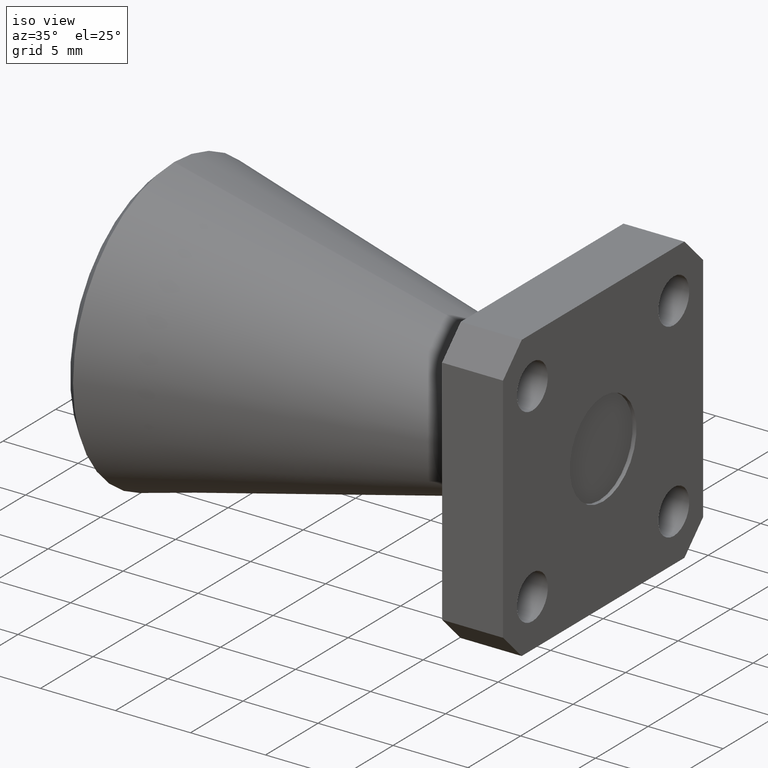
[diagram: clean part render]
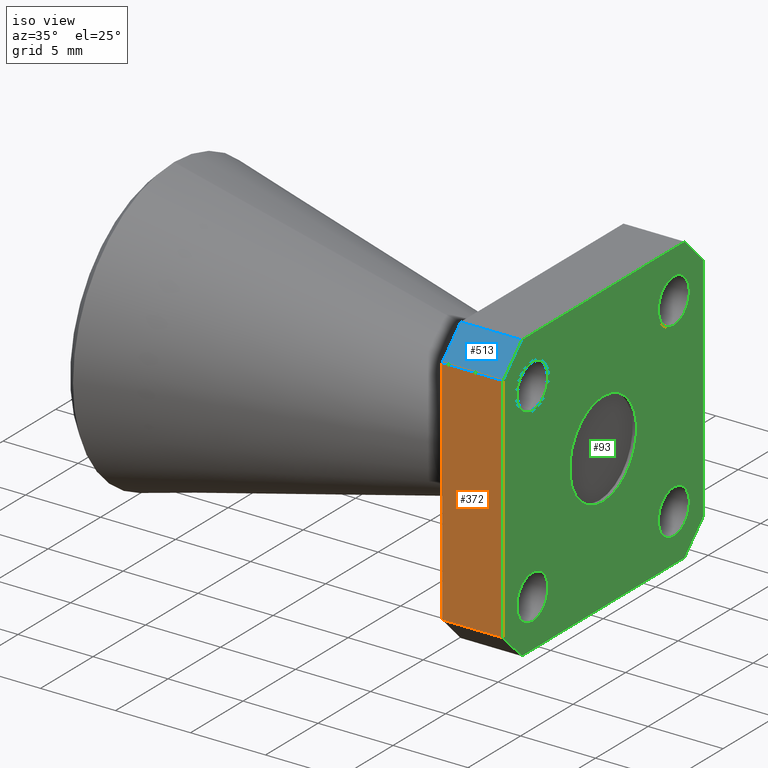
[diagram: same view with three faces highlighted in distinct colors, each labeled with its STEP entity id]
A machine part, iso view with three faces highlighted in distinct colors.
Their STEP definitions:

[orange] entity #372 — the highlighted planar face has unit normal (0, -1, 0).
#64 = VERTEX_POINT ( 'NONE', #547 ) ;
#78 = VERTEX_POINT ( 'NONE', #483 ) ;
#119 = ORIENTED_EDGE ( 'NONE', *, *, #142, .T. ) ;
#142 = EDGE_CURVE ( 'NONE', #64, #288, #828, .T. ) ;
#146 = DIRECTION ( 'NONE',  ( 1.000000000000000000, 0.0000000000000000000, 0.0000000000000000000 ) ) ;
#211 = EDGE_CURVE ( 'NONE', #607, #288, #594, .T. ) ;
#242 = FACE_OUTER_BOUND ( 'NONE', #243, .T. ) ;
#243 = EDGE_LOOP ( 'NONE', ( #654, #444, #273, #119 ) ) ;
#273 = ORIENTED_EDGE ( 'NONE', *, *, #409, .T. ) ;
#288 = VERTEX_POINT ( 'NONE', #375 ) ;
#320 = LINE ( 'NONE', #543, #481 ) ;
#335 = DIRECTION ( 'NONE',  ( -1.000000000000000000, 0.0000000000000000000, 0.0000000000000000000 ) ) ;
#338 = VECTOR ( 'NONE', #146, 39.37007874015748100 ) ;
#372 = ADVANCED_FACE ( 'NONE', ( #242 ), #743, .T. ) ;
#375 = CARTESIAN_POINT ( 'NONE',  ( 0.0000000000000000000, -0.3750000000000000600, -0.3049999999999996000 ) ) ;
#398 = DIRECTION ( 'NONE',  ( 0.0000000000000000000, -0.0000000000000000000, -1.000000000000000000 ) ) ;
#401 = VECTOR ( 'NONE', #531, 39.37007874015748100 ) ;
#409 = EDGE_CURVE ( 'NONE', #78, #64, #780, .T. ) ;
#444 = ORIENTED_EDGE ( 'NONE', *, *, #620, .T. ) ;
#458 = DIRECTION ( 'NONE',  ( 0.0000000000000000000, -1.000000000000000000, 0.0000000000000000000 ) ) ;
#460 = CARTESIAN_POINT ( 'NONE',  ( -0.1600000000000000000, -0.3750000000000000600, 0.3750000000000001100 ) ) ;
#481 = VECTOR ( 'NONE', #335, 39.37007874015748100 ) ;
#483 = CARTESIAN_POINT ( 'NONE',  ( -0.1600000000000000000, -0.3750000000000000600, 0.3049999999999997700 ) ) ;
#494 = DIRECTION ( 'NONE',  ( 0.0000000000000000000, 0.0000000000000000000, -1.000000000000000000 ) ) ;
#531 = DIRECTION ( 'NONE',  ( 0.0000000000000000000, 0.0000000000000000000, -1.000000000000000000 ) ) ;
#543 = CARTESIAN_POINT ( 'NONE',  ( -0.1600000000000000000, -0.3750000000000000600, 0.3049999999999997700 ) ) ;
#547 = CARTESIAN_POINT ( 'NONE',  ( -0.1600000000000000000, -0.3750000000000000600, -0.3049999999999996000 ) ) ;
#594 = LINE ( 'NONE', #644, #744 ) ;
#601 = CARTESIAN_POINT ( 'NONE',  ( -0.1600000000000000000, -0.3750000000000000600, 0.3750000000000001100 ) ) ;
#607 = VERTEX_POINT ( 'NONE', #616 ) ;
#616 = CARTESIAN_POINT ( 'NONE',  ( 0.0000000000000000000, -0.3750000000000000600, 0.3049999999999997700 ) ) ;
#620 = EDGE_CURVE ( 'NONE', #607, #78, #320, .T. ) ;
#644 = CARTESIAN_POINT ( 'NONE',  ( 0.0000000000000000000, -0.3750000000000000600, 0.3750000000000001100 ) ) ;
#654 = ORIENTED_EDGE ( 'NONE', *, *, #211, .F. ) ;
#743 = PLANE ( 'NONE',  #767 ) ;
#744 = VECTOR ( 'NONE', #494, 39.37007874015748100 ) ;
#767 = AXIS2_PLACEMENT_3D ( 'NONE', #601, #458, #398 ) ;
#780 = LINE ( 'NONE', #460, #401 ) ;
#828 = LINE ( 'NONE', #850, #338 ) ;
#850 = CARTESIAN_POINT ( 'NONE',  ( -0.1600000000000000000, -0.3750000000000000600, -0.3049999999999998800 ) ) ;

[blue] entity #513 — the highlighted planar face has unit normal (-0, 0.7071, -0.7071).
#58 = CARTESIAN_POINT ( 'NONE',  ( -0.1600000000000000000, -0.3049999999999999400, 0.3750000000000001100 ) ) ;
#78 = VERTEX_POINT ( 'NONE', #483 ) ;
#101 = DIRECTION ( 'NONE',  ( -0.0000000000000000000, -0.7071067811865461300, -0.7071067811865489100 ) ) ;
#127 = VERTEX_POINT ( 'NONE', #848 ) ;
#153 = LINE ( 'NONE', #511, #364 ) ;
#164 = VECTOR ( 'NONE', #883, 39.37007874015748100 ) ;
#190 = DIRECTION ( 'NONE',  ( 1.000000000000000000, 0.0000000000000000000, -0.0000000000000000000 ) ) ;
#248 = AXIS2_PLACEMENT_3D ( 'NONE', #683, #761, #190 ) ;
#320 = LINE ( 'NONE', #543, #481 ) ;
#328 = EDGE_CURVE ( 'NONE', #127, #607, #153, .T. ) ;
#335 = DIRECTION ( 'NONE',  ( -1.000000000000000000, 0.0000000000000000000, 0.0000000000000000000 ) ) ;
#364 = VECTOR ( 'NONE', #101, 39.37007874015748100 ) ;
#410 = CARTESIAN_POINT ( 'NONE',  ( -0.1600000000000000000, -0.3049999999999999400, 0.3750000000000001100 ) ) ;
#411 = LINE ( 'NONE', #824, #164 ) ;
#422 = ORIENTED_EDGE ( 'NONE', *, *, #525, .F. ) ;
#459 = VECTOR ( 'NONE', #469, 39.37007874015748100 ) ;
#469 = DIRECTION ( 'NONE',  ( 1.000000000000000000, 0.0000000000000000000, 0.0000000000000000000 ) ) ;
#481 = VECTOR ( 'NONE', #335, 39.37007874015748100 ) ;
#483 = CARTESIAN_POINT ( 'NONE',  ( -0.1600000000000000000, -0.3750000000000000600, 0.3049999999999997700 ) ) ;
#508 = ORIENTED_EDGE ( 'NONE', *, *, #620, .F. ) ;
#511 = CARTESIAN_POINT ( 'NONE',  ( 0.0000000000000000000, -0.3400000000000006400, 0.3399999999999993000 ) ) ;
#513 = ADVANCED_FACE ( 'NONE', ( #524 ), #686, .F. ) ;
#524 = FACE_OUTER_BOUND ( 'NONE', #563, .T. ) ;
#525 = EDGE_CURVE ( 'NONE', #78, #611, #411, .T. ) ;
#543 = CARTESIAN_POINT ( 'NONE',  ( -0.1600000000000000000, -0.3750000000000000600, 0.3049999999999997700 ) ) ;
#548 = LINE ( 'NONE', #58, #459 ) ;
#563 = EDGE_LOOP ( 'NONE', ( #422, #508, #748, #862 ) ) ;
#587 = EDGE_CURVE ( 'NONE', #611, #127, #548, .T. ) ;
#607 = VERTEX_POINT ( 'NONE', #616 ) ;
#611 = VERTEX_POINT ( 'NONE', #410 ) ;
#616 = CARTESIAN_POINT ( 'NONE',  ( 0.0000000000000000000, -0.3750000000000000600, 0.3049999999999997700 ) ) ;
#620 = EDGE_CURVE ( 'NONE', #607, #78, #320, .T. ) ;
#683 = CARTESIAN_POINT ( 'NONE',  ( -0.1600000000000000000, -0.3049999999999999400, 0.3750000000000001100 ) ) ;
#686 = PLANE ( 'NONE',  #248 ) ;
#748 = ORIENTED_EDGE ( 'NONE', *, *, #328, .F. ) ;
#761 = DIRECTION ( 'NONE',  ( -0.0000000000000000000, 0.7071067811865489100, -0.7071067811865461300 ) ) ;
#824 = CARTESIAN_POINT ( 'NONE',  ( -0.1600000000000000000, -0.3400000000000006400, 0.3399999999999993000 ) ) ;
#848 = CARTESIAN_POINT ( 'NONE',  ( 0.0000000000000000000, -0.3049999999999999400, 0.3750000000000001100 ) ) ;
#862 = ORIENTED_EDGE ( 'NONE', *, *, #587, .F. ) ;
#883 = DIRECTION ( 'NONE',  ( -0.0000000000000000000, 0.7071067811865461300, 0.7071067811865489100 ) ) ;

[green] entity #93 — the highlighted planar face has unit normal (1, 0, -0).
#1 = VECTOR ( 'NONE', #634, 39.37007874015748100 ) ;
#8 = CARTESIAN_POINT ( 'NONE',  ( 0.0000000000000000000, 0.3750000000000000600, 0.3750000000000001100 ) ) ;
#14 = LINE ( 'NONE', #347, #730 ) ;
#18 = ORIENTED_EDGE ( 'NONE', *, *, #328, .T. ) ;
#19 = DIRECTION ( 'NONE',  ( 1.000000000000000000, 0.0000000000000000000, 0.0000000000000000000 ) ) ;
#21 = CARTESIAN_POINT ( 'NONE',  ( -6.594723013408498700E-018, 0.2650000000000000100, -0.2499999999999999200 ) ) ;
#24 = DIRECTION ( 'NONE',  ( 0.0000000000000000000, 0.0000000000000000000, -1.000000000000000000 ) ) ;
#36 = AXIS2_PLACEMENT_3D ( 'NONE', #132, #471, #542 ) ;
#42 = ORIENTED_EDGE ( 'NONE', *, *, #211, .T. ) ;
#43 = CARTESIAN_POINT ( 'NONE',  ( -6.594723013408498700E-018, -0.2650000000000000700, 0.3080000000000001100 ) ) ;
#45 = CARTESIAN_POINT ( 'NONE',  ( -6.594723013408498700E-018, 0.2649999999999999600, 0.2500000000000000600 ) ) ;
#51 = LINE ( 'NONE', #8, #72 ) ;
#63 = DIRECTION ( 'NONE',  ( -0.0000000000000000000, -1.000000000000000000, -0.0000000000000000000 ) ) ;
#72 = VECTOR ( 'NONE', #217, 39.37007874015748100 ) ;
#76 = FACE_BOUND ( 'NONE', #147, .T. ) ;
#87 = CARTESIAN_POINT ( 'NONE',  ( -6.594723013408498700E-018, 0.2650000000000000100, -0.2499999999999999200 ) ) ;
#91 = CARTESIAN_POINT ( 'NONE',  ( -6.594723013408498700E-018, 0.2650000000000000100, -0.1919999999999999200 ) ) ;
#93 = ADVANCED_FACE ( 'NONE', ( #662, #252, #700, #368, #76, #155 ), #139, .T. ) ;
#97 = ORIENTED_EDGE ( 'NONE', *, *, #161, .F. ) ;
#99 = ORIENTED_EDGE ( 'NONE', *, *, #416, .F. ) ;
#101 = DIRECTION ( 'NONE',  ( -0.0000000000000000000, -0.7071067811865461300, -0.7071067811865489100 ) ) ;
#125 = VECTOR ( 'NONE', #636, 39.37007874015748100 ) ;
#127 = VERTEX_POINT ( 'NONE', #848 ) ;
#132 = CARTESIAN_POINT ( 'NONE',  ( -6.594723013408498700E-018, -0.2650000000000000700, 0.2500000000000000600 ) ) ;
#133 = DIRECTION ( 'NONE',  ( -0.0000000000000000000, 0.0000000000000000000, -1.000000000000000000 ) ) ;
#137 = VERTEX_POINT ( 'NONE', #150 ) ;
#138 = VERTEX_POINT ( 'NONE', #714 ) ;
#139 = PLANE ( 'NONE',  #504 ) ;
#141 = CARTESIAN_POINT ( 'NONE',  ( 0.0000000000000000000, 1.530808498934191500E-017, 0.1250000000000000000 ) ) ;
#147 = EDGE_LOOP ( 'NONE', ( #768, #655 ) ) ;
#150 = CARTESIAN_POINT ( 'NONE',  ( 0.0000000000000000000, 0.3750000000000000600, -0.3049999999999993300 ) ) ;
#153 = LINE ( 'NONE', #511, #364 ) ;
#155 = FACE_OUTER_BOUND ( 'NONE', #456, .T. ) ;
#161 = EDGE_CURVE ( 'NONE', #138, #843, #627, .T. ) ;
#162 = LINE ( 'NONE', #557, #1 ) ;
#168 = EDGE_CURVE ( 'NONE', #137, #745, #51, .T. ) ;
#172 = CARTESIAN_POINT ( 'NONE',  ( 0.0000000000000000000, 0.3049999999999993800, 0.3750000000000001100 ) ) ;
#177 = CARTESIAN_POINT ( 'NONE',  ( -6.594723013408498700E-018, -0.2650000000000000700, 0.2500000000000000600 ) ) ;
#182 = DIRECTION ( 'NONE',  ( 0.0000000000000000000, 0.0000000000000000000, -1.000000000000000000 ) ) ;
#184 = AXIS2_PLACEMENT_3D ( 'NONE', #612, #667, #182 ) ;
#186 = CARTESIAN_POINT ( 'NONE',  ( 0.0000000000000000000, -0.3750000000000000600, -0.3749999999999999400 ) ) ;
#197 = EDGE_LOOP ( 'NONE', ( #99, #382 ) ) ;
#211 = EDGE_CURVE ( 'NONE', #607, #288, #594, .T. ) ;
#217 = DIRECTION ( 'NONE',  ( -0.0000000000000000000, -0.0000000000000000000, 1.000000000000000000 ) ) ;
#230 = DIRECTION ( 'NONE',  ( 0.0000000000000000000, 0.0000000000000000000, -1.000000000000000000 ) ) ;
#231 = DIRECTION ( 'NONE',  ( 1.000000000000000000, -0.0000000000000000000, -0.0000000000000000000 ) ) ;
#241 = LINE ( 'NONE', #628, #125 ) ;
#247 = DIRECTION ( 'NONE',  ( 1.000000000000000000, -0.0000000000000000000, -0.0000000000000000000 ) ) ;
#252 = FACE_BOUND ( 'NONE', #510, .T. ) ;
#255 = DIRECTION ( 'NONE',  ( 0.0000000000000000000, 0.0000000000000000000, -1.000000000000000000 ) ) ;
#258 = CARTESIAN_POINT ( 'NONE',  ( 0.0000000000000000000, -0.3750000000000000600, 0.3750000000000001100 ) ) ;
#263 = CARTESIAN_POINT ( 'NONE',  ( 0.0000000000000000000, -0.3049999999999996600, -0.3749999999999999400 ) ) ;
#264 = VERTEX_POINT ( 'NONE', #580 ) ;
#268 = EDGE_CURVE ( 'NONE', #264, #812, #708, .T. ) ;
#281 = AXIS2_PLACEMENT_3D ( 'NONE', #177, #247, #255 ) ;
#288 = VERTEX_POINT ( 'NONE', #375 ) ;
#293 = DIRECTION ( 'NONE',  ( 1.000000000000000000, -0.0000000000000000000, -0.0000000000000000000 ) ) ;
#298 = CIRCLE ( 'NONE', #569, 0.05800000000000000300 ) ;
#300 = VERTEX_POINT ( 'NONE', #802 ) ;
#301 = CARTESIAN_POINT ( 'NONE',  ( 0.0000000000000000000, 0.0000000000000000000, 0.0000000000000000000 ) ) ;
#307 = DIRECTION ( 'NONE',  ( 0.0000000000000000000, 0.0000000000000000000, -1.000000000000000000 ) ) ;
#328 = EDGE_CURVE ( 'NONE', #127, #607, #153, .T. ) ;
#330 = CIRCLE ( 'NONE', #645, 0.05800000000000003800 ) ;
#334 = AXIS2_PLACEMENT_3D ( 'NONE', #21, #231, #640 ) ;
#347 = CARTESIAN_POINT ( 'NONE',  ( 0.0000000000000000000, 0.3400000000000005200, -0.3399999999999992500 ) ) ;
#357 = CARTESIAN_POINT ( 'NONE',  ( -6.594723013408498700E-018, -0.2650000000000000100, -0.2499999999999999200 ) ) ;
#364 = VECTOR ( 'NONE', #101, 39.37007874015748100 ) ;
#368 = FACE_BOUND ( 'NONE', #518, .T. ) ;
#375 = CARTESIAN_POINT ( 'NONE',  ( 0.0000000000000000000, -0.3750000000000000600, -0.3049999999999996000 ) ) ;
#379 = EDGE_LOOP ( 'NONE', ( #564, #663 ) ) ;
#380 = VERTEX_POINT ( 'NONE', #172 ) ;
#382 = ORIENTED_EDGE ( 'NONE', *, *, #268, .F. ) ;
#396 = CARTESIAN_POINT ( 'NONE',  ( 0.0000000000000000000, 0.0000000000000000000, -0.1250000000000000000 ) ) ;
#399 = CIRCLE ( 'NONE', #455, 0.05800000000000003800 ) ;
#416 = EDGE_CURVE ( 'NONE', #812, #264, #298, .T. ) ;
#423 = VERTEX_POINT ( 'NONE', #43 ) ;
#428 = DIRECTION ( 'NONE',  ( 0.0000000000000000000, 0.0000000000000000000, -1.000000000000000000 ) ) ;
#430 = EDGE_CURVE ( 'NONE', #551, #423, #679, .T. ) ;
#431 = VECTOR ( 'NONE', #623, 39.37007874015748100 ) ;
#437 = DIRECTION ( 'NONE',  ( 0.0000000000000000000, 0.0000000000000000000, -1.000000000000000000 ) ) ;
#450 = CIRCLE ( 'NONE', #785, 0.1250000000000000000 ) ;
#455 = AXIS2_PLACEMENT_3D ( 'NONE', #87, #849, #437 ) ;
#456 = EDGE_LOOP ( 'NONE', ( #541, #18, #42, #733, #693, #474, #642, #759 ) ) ;
#464 = EDGE_CURVE ( 'NONE', #538, #300, #706, .T. ) ;
#471 = DIRECTION ( 'NONE',  ( 1.000000000000000000, -0.0000000000000000000, -0.0000000000000000000 ) ) ;
#474 = ORIENTED_EDGE ( 'NONE', *, *, #678, .T. ) ;
#487 = DIRECTION ( 'NONE',  ( 0.0000000000000000000, 0.7071067811865461300, 0.7071067811865489100 ) ) ;
#494 = DIRECTION ( 'NONE',  ( 0.0000000000000000000, 0.0000000000000000000, -1.000000000000000000 ) ) ;
#499 = DIRECTION ( 'NONE',  ( 1.000000000000000000, -0.0000000000000000000, -0.0000000000000000000 ) ) ;
#501 = CARTESIAN_POINT ( 'NONE',  ( -6.594723013408498700E-018, 0.2649999999999999600, 0.1920000000000000600 ) ) ;
#504 = AXIS2_PLACEMENT_3D ( 'NONE', #630, #760, #133 ) ;
#510 = EDGE_LOOP ( 'NONE', ( #97, #771 ) ) ;
#511 = CARTESIAN_POINT ( 'NONE',  ( 0.0000000000000000000, -0.3400000000000006400, 0.3399999999999993000 ) ) ;
#516 = AXIS2_PLACEMENT_3D ( 'NONE', #357, #499, #428 ) ;
#518 = EDGE_LOOP ( 'NONE', ( #651, #892 ) ) ;
#538 = VERTEX_POINT ( 'NONE', #263 ) ;
#541 = ORIENTED_EDGE ( 'NONE', *, *, #558, .T. ) ;
#542 = DIRECTION ( 'NONE',  ( 0.0000000000000000000, 0.0000000000000000000, -1.000000000000000000 ) ) ;
#551 = VERTEX_POINT ( 'NONE', #681 ) ;
#557 = CARTESIAN_POINT ( 'NONE',  ( 0.0000000000000000000, -0.3399999999999991900, -0.3400000000000005200 ) ) ;
#558 = EDGE_CURVE ( 'NONE', #380, #127, #639, .T. ) ;
#560 = CARTESIAN_POINT ( 'NONE',  ( -6.594723013408498700E-018, -0.2650000000000000100, -0.3079999999999999400 ) ) ;
#564 = ORIENTED_EDGE ( 'NONE', *, *, #860, .F. ) ;
#569 = AXIS2_PLACEMENT_3D ( 'NONE', #45, #593, #734 ) ;
#570 = CARTESIAN_POINT ( 'NONE',  ( -6.594723013408498700E-018, -0.2650000000000000100, -0.1919999999999999200 ) ) ;
#580 = CARTESIAN_POINT ( 'NONE',  ( -6.594723013408498700E-018, 0.2649999999999999600, 0.3080000000000001100 ) ) ;
#586 = DIRECTION ( 'NONE',  ( 1.000000000000000000, -0.0000000000000000000, -0.0000000000000000000 ) ) ;
#593 = DIRECTION ( 'NONE',  ( 1.000000000000000000, -0.0000000000000000000, -0.0000000000000000000 ) ) ;
#594 = LINE ( 'NONE', #644, #744 ) ;
#605 = EDGE_CURVE ( 'NONE', #423, #551, #755, .T. ) ;
#607 = VERTEX_POINT ( 'NONE', #616 ) ;
#612 = CARTESIAN_POINT ( 'NONE',  ( 0.0000000000000000000, 0.0000000000000000000, 0.0000000000000000000 ) ) ;
#616 = CARTESIAN_POINT ( 'NONE',  ( 0.0000000000000000000, -0.3750000000000000600, 0.3049999999999997700 ) ) ;
#623 = DIRECTION ( 'NONE',  ( 0.0000000000000000000, 1.000000000000000000, 0.0000000000000000000 ) ) ;
#627 = CIRCLE ( 'NONE', #334, 0.05800000000000003800 ) ;
#628 = CARTESIAN_POINT ( 'NONE',  ( 0.0000000000000000000, 0.3399999999999993000, 0.3400000000000006400 ) ) ;
#629 = VERTEX_POINT ( 'NONE', #141 ) ;
#630 = CARTESIAN_POINT ( 'NONE',  ( 0.0000000000000000000, 0.0000000000000000000, 0.0000000000000000000 ) ) ;
#634 = DIRECTION ( 'NONE',  ( -0.0000000000000000000, 0.7071067811865489100, -0.7071067811865461300 ) ) ;
#636 = DIRECTION ( 'NONE',  ( -0.0000000000000000000, -0.7071067811865489100, 0.7071067811865461300 ) ) ;
#639 = LINE ( 'NONE', #258, #649 ) ;
#640 = DIRECTION ( 'NONE',  ( 0.0000000000000000000, 0.0000000000000000000, -1.000000000000000000 ) ) ;
#642 = ORIENTED_EDGE ( 'NONE', *, *, #168, .T. ) ;
#644 = CARTESIAN_POINT ( 'NONE',  ( 0.0000000000000000000, -0.3750000000000000600, 0.3750000000000001100 ) ) ;
#645 = AXIS2_PLACEMENT_3D ( 'NONE', #647, #293, #230 ) ;
#647 = CARTESIAN_POINT ( 'NONE',  ( -6.594723013408498700E-018, -0.2650000000000000100, -0.2499999999999999200 ) ) ;
#649 = VECTOR ( 'NONE', #63, 39.37007874015748100 ) ;
#651 = ORIENTED_EDGE ( 'NONE', *, *, #430, .F. ) ;
#655 = ORIENTED_EDGE ( 'NONE', *, *, #875, .F. ) ;
#656 = EDGE_CURVE ( 'NONE', #745, #380, #241, .T. ) ;
#657 = CARTESIAN_POINT ( 'NONE',  ( -6.594723013408498700E-018, 0.2649999999999999600, 0.2500000000000000600 ) ) ;
#662 = FACE_BOUND ( 'NONE', #197, .T. ) ;
#663 = ORIENTED_EDGE ( 'NONE', *, *, #864, .F. ) ;
#667 = DIRECTION ( 'NONE',  ( 1.000000000000000000, 0.0000000000000000000, 0.0000000000000000000 ) ) ;
#672 = VERTEX_POINT ( 'NONE', #560 ) ;
#676 = AXIS2_PLACEMENT_3D ( 'NONE', #657, #586, #307 ) ;
#678 = EDGE_CURVE ( 'NONE', #300, #137, #14, .T. ) ;
#679 = CIRCLE ( 'NONE', #281, 0.05800000000000000300 ) ;
#681 = CARTESIAN_POINT ( 'NONE',  ( -6.594723013408498700E-018, -0.2650000000000000700, 0.1920000000000000600 ) ) ;
#693 = ORIENTED_EDGE ( 'NONE', *, *, #464, .T. ) ;
#698 = EDGE_CURVE ( 'NONE', #288, #538, #162, .T. ) ;
#700 = FACE_BOUND ( 'NONE', #379, .T. ) ;
#706 = LINE ( 'NONE', #186, #431 ) ;
#708 = CIRCLE ( 'NONE', #676, 0.05800000000000000300 ) ;
#712 = VERTEX_POINT ( 'NONE', #570 ) ;
#714 = CARTESIAN_POINT ( 'NONE',  ( -6.594723013408498700E-018, 0.2650000000000000100, -0.3079999999999999400 ) ) ;
#730 = VECTOR ( 'NONE', #487, 39.37007874015748100 ) ;
#733 = ORIENTED_EDGE ( 'NONE', *, *, #698, .T. ) ;
#734 = DIRECTION ( 'NONE',  ( 0.0000000000000000000, 0.0000000000000000000, -1.000000000000000000 ) ) ;
#744 = VECTOR ( 'NONE', #494, 39.37007874015748100 ) ;
#745 = VERTEX_POINT ( 'NONE', #835 ) ;
#753 = CIRCLE ( 'NONE', #516, 0.05800000000000003800 ) ;
#755 = CIRCLE ( 'NONE', #36, 0.05800000000000000300 ) ;
#759 = ORIENTED_EDGE ( 'NONE', *, *, #656, .T. ) ;
#760 = DIRECTION ( 'NONE',  ( 1.000000000000000000, 0.0000000000000000000, -0.0000000000000000000 ) ) ;
#768 = ORIENTED_EDGE ( 'NONE', *, *, #836, .F. ) ;
#771 = ORIENTED_EDGE ( 'NONE', *, *, #825, .F. ) ;
#785 = AXIS2_PLACEMENT_3D ( 'NONE', #301, #19, #24 ) ;
#802 = CARTESIAN_POINT ( 'NONE',  ( 0.0000000000000000000, 0.3049999999999996600, -0.3749999999999999400 ) ) ;
#812 = VERTEX_POINT ( 'NONE', #501 ) ;
#825 = EDGE_CURVE ( 'NONE', #843, #138, #399, .T. ) ;
#835 = CARTESIAN_POINT ( 'NONE',  ( 0.0000000000000000000, 0.3750000000000000600, 0.3050000000000000500 ) ) ;
#836 = EDGE_CURVE ( 'NONE', #877, #629, #450, .T. ) ;
#843 = VERTEX_POINT ( 'NONE', #91 ) ;
#848 = CARTESIAN_POINT ( 'NONE',  ( 0.0000000000000000000, -0.3049999999999999400, 0.3750000000000001100 ) ) ;
#849 = DIRECTION ( 'NONE',  ( 1.000000000000000000, -0.0000000000000000000, -0.0000000000000000000 ) ) ;
#860 = EDGE_CURVE ( 'NONE', #672, #712, #753, .T. ) ;
#864 = EDGE_CURVE ( 'NONE', #712, #672, #330, .T. ) ;
#875 = EDGE_CURVE ( 'NONE', #629, #877, #888, .T. ) ;
#877 = VERTEX_POINT ( 'NONE', #396 ) ;
#888 = CIRCLE ( 'NONE', #184, 0.1250000000000000000 ) ;
#892 = ORIENTED_EDGE ( 'NONE', *, *, #605, .F. ) ;